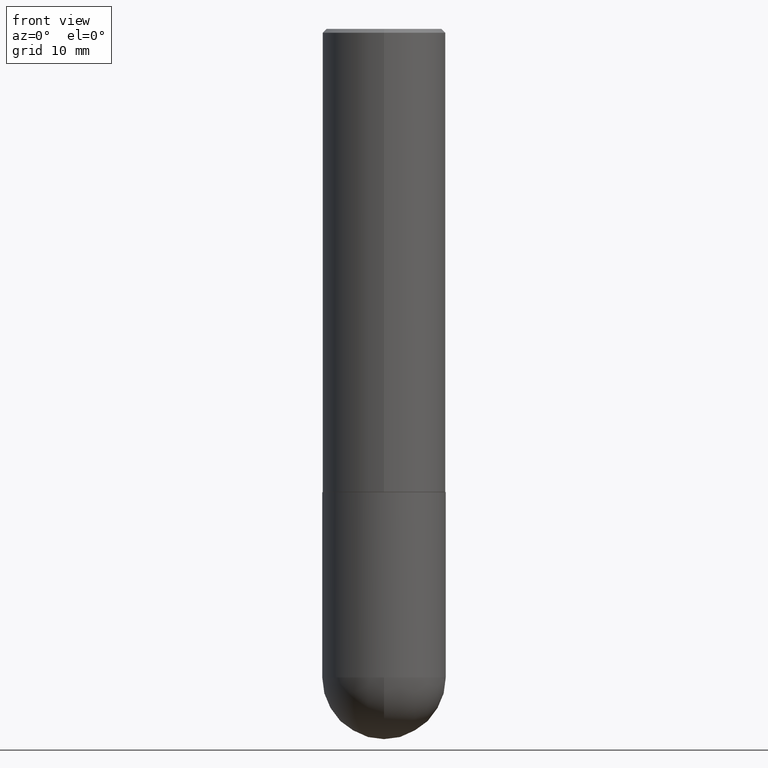
[diagram: clean part render]
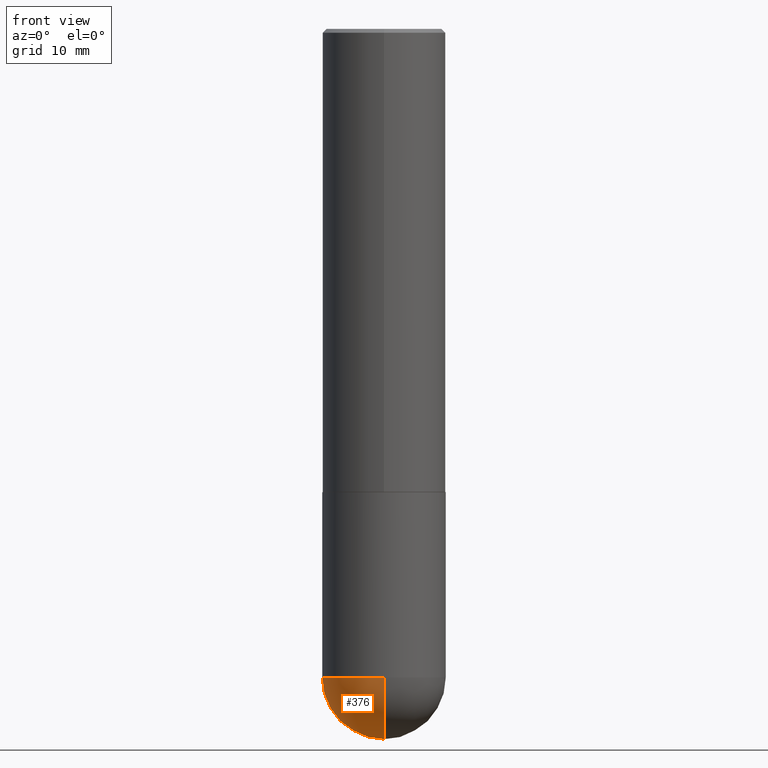
[diagram: same view with one face highlighted and labeled with its STEP entity id]
A machine part, front view. The second image highlights one B-rep face of the part: STEP entity #376.
In plain terms, the highlighted spherical surface has radius 7.9997 mm.
Its self-contained STEP definition (entity closure, byte-faithful):
#7 = EDGE_CURVE ( 'NONE', #214, #158, #398, .T. ) ;
#10 = CIRCLE ( 'NONE', #226, 0.3149500000000000077 ) ;
#15 = EDGE_LOOP ( 'NONE', ( #127, #368, #294, #228 ) ) ;
#17 = AXIS2_PLACEMENT_3D ( 'NONE', #180, #18, #208 ) ;
#18 = DIRECTION ( 'NONE',  ( -1.000000000000000000, 7.105427357601001070E-15, -4.926315508542082329E-29 ) ) ;
#52 = CIRCLE ( 'NONE', #298, 0.3149500000000000077 ) ;
#55 = CARTESIAN_POINT ( 'NONE',  ( 8.539834969227531055E-29, -1.310104265196035002E-14, -3.621999999999999886 ) ) ;
#76 = DIRECTION ( 'NONE',  ( 1.000000000000000000, -6.982962677686269866E-15, 0.000000000000000000 ) ) ;
#87 = CARTESIAN_POINT ( 'NONE',  ( 8.087287615494557476E-29, -1.154650336162122627E-14, -3.307050000000000267 ) ) ;
#92 = SPHERICAL_SURFACE ( 'NONE', #324, 0.3149500000000001743 ) ;
#103 = CARTESIAN_POINT ( 'NONE',  ( 8.087287615494557476E-29, -1.154650336162122627E-14, -3.307050000000000267 ) ) ;
#107 = CARTESIAN_POINT ( 'NONE',  ( 2.199284095337369546E-15, 0.3149499999999882394, -3.307050000000001599 ) ) ;
#127 = ORIENTED_EDGE ( 'NONE', *, *, #7, .F. ) ;
#150 = CIRCLE ( 'NONE', #17, 0.3149500000000001743 ) ;
#158 = VERTEX_POINT ( 'NONE', #107 ) ;
#178 = EDGE_CURVE ( 'NONE', #214, #233, #150, .T. ) ;
#180 = CARTESIAN_POINT ( 'NONE',  ( 7.756167837580670108E-29, -1.202068572976127498E-14, -3.307049999999999823 ) ) ;
#185 = DIRECTION ( 'NONE',  ( 1.000000000000000000, -6.982962677686269866E-15, 0.000000000000000000 ) ) ;
#189 = DIRECTION ( 'NONE',  ( -1.000000000000000000, 6.982962677686265133E-15, -4.883557194083112901E-29 ) ) ;
#208 = DIRECTION ( 'NONE',  ( -7.105427357600999492E-15, -1.000000000000000000, 0.000000000000000000 ) ) ;
#214 = VERTEX_POINT ( 'NONE', #55 ) ;
#219 = DIRECTION ( 'NONE',  ( -2.445468806185136597E-29, 3.491481338843145583E-15, 1.000000000000000000 ) ) ;
#221 = FACE_OUTER_BOUND ( 'NONE', #15, .T. ) ;
#223 = EDGE_CURVE ( 'NONE', #158, #285, #52, .T. ) ;
#225 = CARTESIAN_POINT ( 'NONE',  ( -2.237854346276355915E-15, -0.3149500000000118871, -3.307049999999999379 ) ) ;
#226 = AXIS2_PLACEMENT_3D ( 'NONE', #103, #240, #76 ) ;
#228 = ORIENTED_EDGE ( 'NONE', *, *, #223, .F. ) ;
#230 = DIRECTION ( 'NONE',  ( 6.982962677686265133E-15, 1.000000000000000000, -3.469564049740291586E-15 ) ) ;
#233 = VERTEX_POINT ( 'NONE', #225 ) ;
#240 = DIRECTION ( 'NONE',  ( -2.445468806185136597E-29, 3.491481338843145583E-15, 1.000000000000000000 ) ) ;
#262 = CARTESIAN_POINT ( 'NONE',  ( -0.3149500000000000077, -7.659185943841817750E-15, -3.307050000000000267 ) ) ;
#276 = DIRECTION ( 'NONE',  ( 1.000000000000000000, -6.982962677686265922E-15, 4.883557194083112340E-29 ) ) ;
#285 = VERTEX_POINT ( 'NONE', #262 ) ;
#294 = ORIENTED_EDGE ( 'NONE', *, *, #333, .F. ) ;
#297 = AXIS2_PLACEMENT_3D ( 'NONE', #395, #276, #328 ) ;
#298 = AXIS2_PLACEMENT_3D ( 'NONE', #87, #219, #185 ) ;
#324 = AXIS2_PLACEMENT_3D ( 'NONE', #412, #189, #230 ) ;
#328 = DIRECTION ( 'NONE',  ( 6.982962677686264344E-15, 1.000000000000000000, 0.000000000000000000 ) ) ;
#333 = EDGE_CURVE ( 'NONE', #285, #233, #10, .T. ) ;
#368 = ORIENTED_EDGE ( 'NONE', *, *, #178, .T. ) ;
#376 = ADVANCED_FACE ( 'NONE', ( #221 ), #92, .T. ) ;
#395 = CARTESIAN_POINT ( 'NONE',  ( 7.756167837580670108E-29, -1.202068572976127498E-14, -3.307049999999999823 ) ) ;
#398 = CIRCLE ( 'NONE', #297, 0.3149500000000001743 ) ;
#412 = CARTESIAN_POINT ( 'NONE',  ( 7.756167837580670108E-29, -1.202068572976127498E-14, -3.307049999999999823 ) ) ;